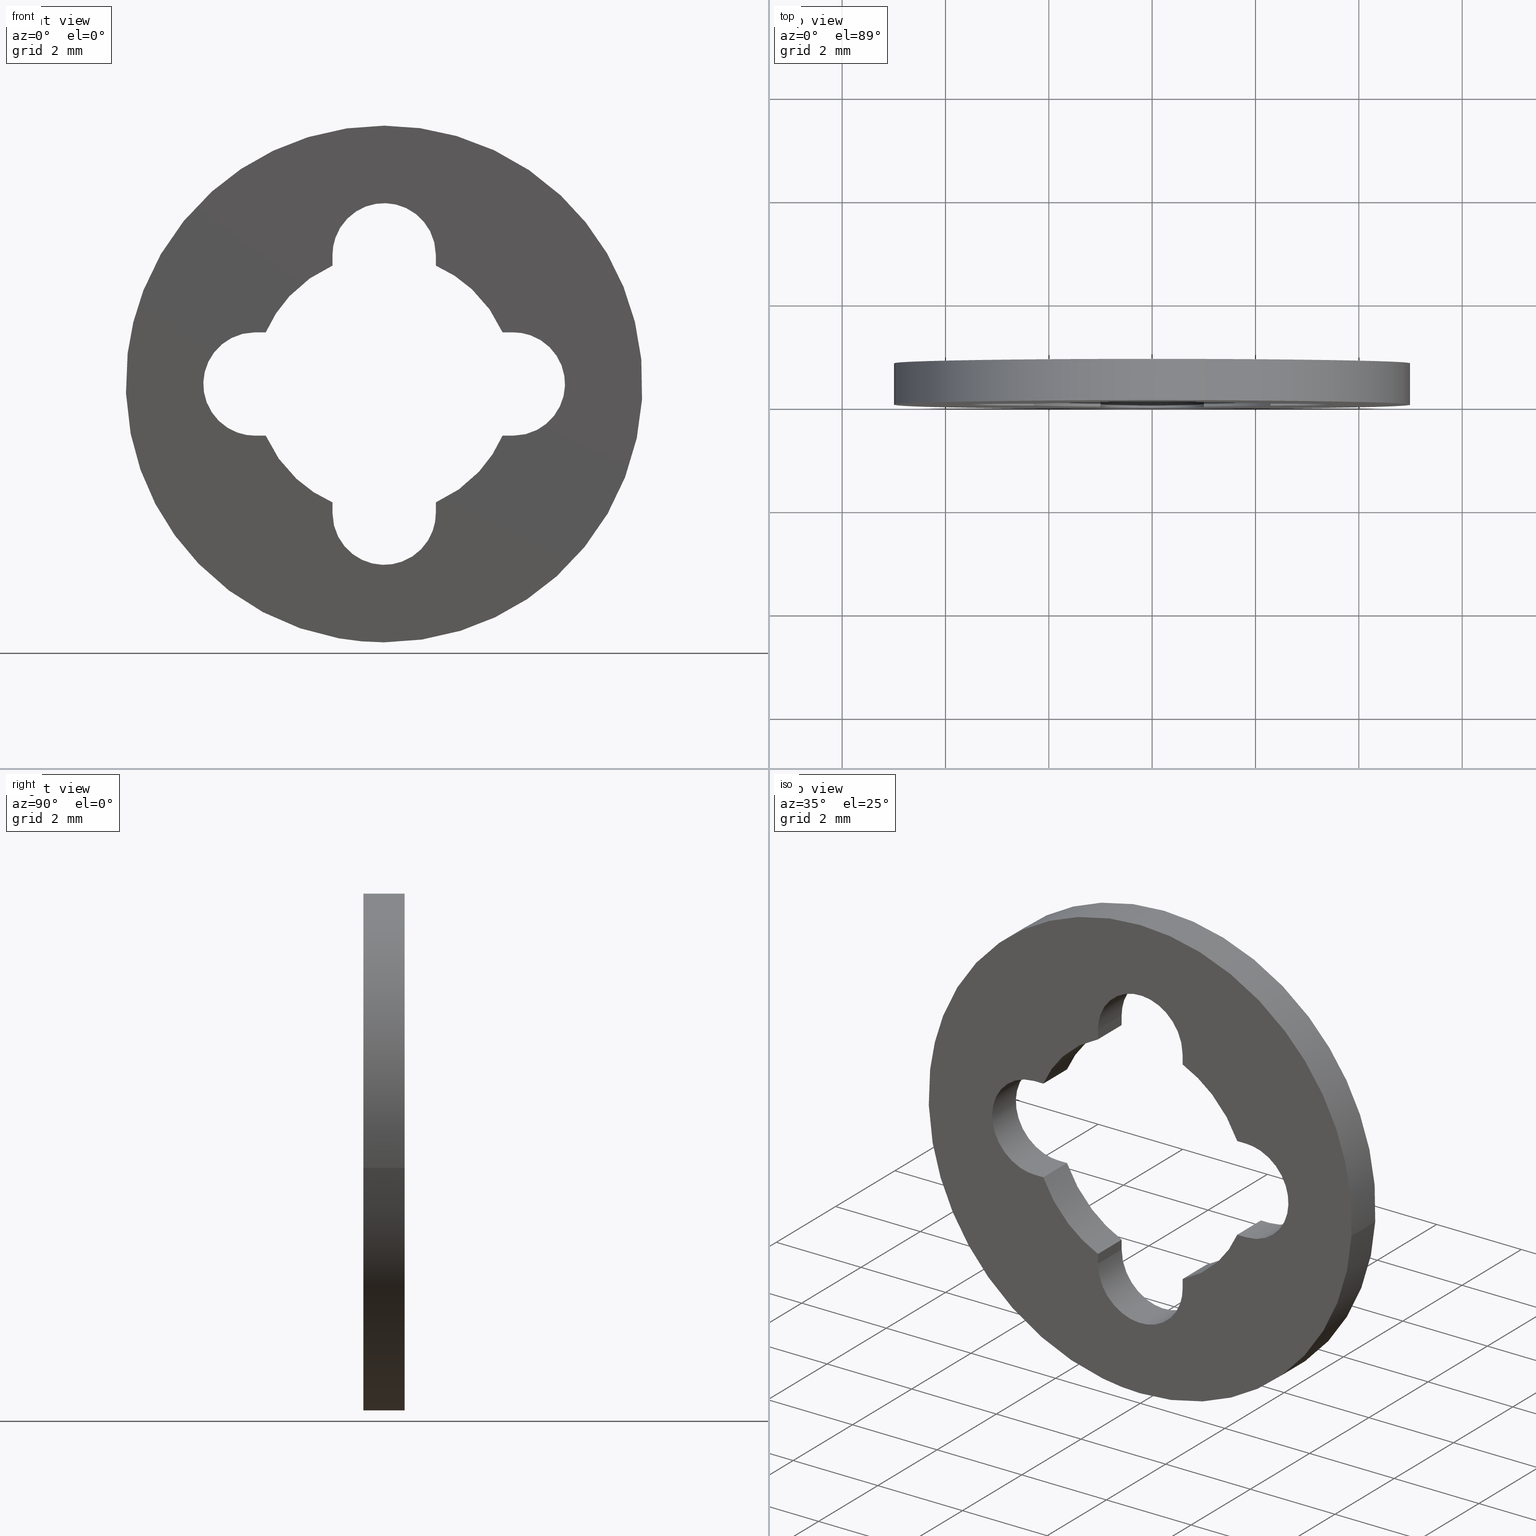
[diagram: canonical four-view strip — front | top / right | iso, engineering-drawing reading convention]
A machine part, canonical four-view strip (front | top / right | iso — engineering-drawing reading convention). The complete STEP part file that produces these views, byte-faithful:
ISO-10303-21;
HEADER;
/****************************************************************
 * Generated by software with PDE/Lib inside                    *
 * PDElib Version 4.4.1-0003, patched  Thursday August 19 11:58 *
 * International Technegroup Inc. (www.iti-oh.com)              *
 ****************************************************************/
FILE_DESCRIPTION((''),'2;1');
FILE_NAME('','2005-07-15T17:44:19',(''),(''),'','CADfix','');
FILE_SCHEMA(('AUTOMOTIVE_DESIGN'));
ENDSEC;
DATA;
#5=APPLICATION_CONTEXT('automotive design');
#6=APPLICATION_PROTOCOL_DEFINITION('Draft International Standard','automotive_design',1998,#5);
#7=PRODUCT_CONTEXT('None',#5,'mechanical');
#8=PRODUCT('washer','','None',(#7));
#9=PRODUCT_RELATED_PRODUCT_CATEGORY('part','description',(#8));
#10=PRODUCT_DEFINITION_FORMATION('None','None',#8);
#11=PRODUCT_DEFINITION_CONTEXT('part definition',#5,'design');
#12=PRODUCT_DEFINITION('None','None',#10,#11);
#18=(NAMED_UNIT(*)PLANE_ANGLE_UNIT()SI_UNIT($,.RADIAN.));
#19=DIMENSIONAL_EXPONENTS(0.0,0.0,0.0,0.0,0.0,0.0,0.0);
#20=PLANE_ANGLE_MEASURE_WITH_UNIT(PLANE_ANGLE_MEASURE(0.017453292500000),#18);
#24=(CONVERSION_BASED_UNIT('DEGREE',#20)NAMED_UNIT(#19)PLANE_ANGLE_UNIT());
#28=(NAMED_UNIT(*)SI_UNIT($,.STERADIAN.)SOLID_ANGLE_UNIT());
#32=(LENGTH_UNIT()NAMED_UNIT(*)SI_UNIT(.MILLI.,.METRE.));
#34=UNCERTAINTY_MEASURE_WITH_UNIT(LENGTH_MEASURE(0.001000000000000),#32,'DISTANCE_ACCURACY_VALUE','');
#36=(GEOMETRIC_REPRESENTATION_CONTEXT(3)GLOBAL_UNCERTAINTY_ASSIGNED_CONTEXT((#34))GLOBAL_UNIT_ASSIGNED_CONTEXT((#24,#28,#32))REPRESENTATION_CONTEXT('None','None'));
#37=AXIS2_PLACEMENT_3D('',#38,#39,#40);
#38=CARTESIAN_POINT('',(0.0,0.0,0.0));
#39=DIRECTION('',(0.0,0.0,1.0));
#40=DIRECTION('',(1.0,0.0,0.0));
#41=ADVANCED_BREP_SHAPE_REPRESENTATION('',(#37,#971),#36);
#42=PRODUCT_DEFINITION_SHAPE('','',#12);
#43=SHAPE_DEFINITION_REPRESENTATION(#42,#41);
#44=CARTESIAN_POINT('',(-4.965047631818332,0.820000000000024,0.590171173283792));
#45=CARTESIAN_POINT('',(-4.981938077243028,0.820000000000024,0.448073643189888));
#46=CARTESIAN_POINT('',(-4.990673992109334,0.820000000000024,0.305242697674285));
#47=CARTESIAN_POINT('',(-5.295916689783620,0.820000000000024,-4.685431294435048));
#48=CARTESIAN_POINT('',(-0.305242697674285,0.820000000000024,-4.990673992109334));
#49=CARTESIAN_POINT('',(4.685431294435048,0.820000000000024,-5.295916689783620));
#50=CARTESIAN_POINT('',(4.990673992109334,0.820000000000024,-0.305242697674285));
#51=CARTESIAN_POINT('',(-4.965047631818332,-0.020500000000001,0.590171173283792));
#52=CARTESIAN_POINT('',(-4.981938077243028,-0.020500000000001,0.448073643189888));
#53=CARTESIAN_POINT('',(-4.990673992109334,-0.020500000000001,0.305242697674285));
#54=CARTESIAN_POINT('',(-5.295916689783620,-0.020500000000001,-4.685431294435048));
#55=CARTESIAN_POINT('',(-0.305242697674285,-0.020500000000001,-4.990673992109334));
#56=CARTESIAN_POINT('',(4.685431294435048,-0.020500000000001,-5.295916689783620));
#57=CARTESIAN_POINT('',(4.990673992109334,-0.020500000000001,-0.305242697674285));
#65=(BOUNDED_SURFACE()B_SPLINE_SURFACE(2,1,((#44,#51),(#45,#52),(#46,#53),(#47,#54),(#48,#55),(#49,#56),(#50,#57)),.UNSPECIFIED.,.F.,.F.,.U.)B_SPLINE_SURFACE_WITH_KNOTS((3,2,2,3),(2,2),(0.0,0.331370849898476,8.615642097360375,16.899913344822270),(0.0,1.0),.UNSPECIFIED.)GEOMETRIC_REPRESENTATION_ITEM()RATIONAL_B_SPLINE_SURFACE(((0.977505800795127,0.977505800795127),(0.988284271247462,0.988284271247462),(1.0,1.0),(0.707106781186548,0.707106781186548),(1.0,1.0),(0.707106781186548,0.707106781186548),(1.0,1.0)))REPRESENTATION_ITEM('')SURFACE());
#66=CARTESIAN_POINT('',(-4.965048007634929,3.045997E-014,0.590168011561354));
#67=VERTEX_POINT('',#66);
#68=CARTESIAN_POINT('',(0.0,0.0,-5.0));
#69=VERTEX_POINT('',#68);
#70=CARTESIAN_POINT('',(-4.965048007634929,3.045997E-014,0.590168011561354));
#71=CARTESIAN_POINT('',(-5.000000000000001,0.0,0.296119000685819));
#72=CARTESIAN_POINT('',(-5.0,0.0,0.0));
#73=CARTESIAN_POINT('',(-5.000000000000001,0.0,-5.000000000000001));
#74=CARTESIAN_POINT('',(0.0,0.0,-5.0));
#82=(BOUNDED_CURVE()B_SPLINE_CURVE(2,(#70,#71,#72,#73,#74),.UNSPECIFIED.,.F.,.U.)B_SPLINE_CURVE_WITH_KNOTS((3,2,3),(0.229562581136241,0.250000000000000,0.500000000000000),.UNSPECIFIED.)CURVE()GEOMETRIC_REPRESENTATION_ITEM()RATIONAL_B_SPLINE_CURVE((0.956026965128767,0.976056074419019,1.0,0.707106781186548,1.0))REPRESENTATION_ITEM(''));
#83=EDGE_CURVE('',#67,#69,#82,.T.);
#84=ORIENTED_EDGE('',*,*,#83,.F.);
#85=CARTESIAN_POINT('',(-4.965048002999415,0.800000000000023,0.590168050559857));
#86=VERTEX_POINT('',#85);
#87=CARTESIAN_POINT('',(-4.965048002999415,0.800000000000023,0.590168050559857));
#88=CARTESIAN_POINT('',(-4.965048007634929,3.045997E-014,0.590168011561354));
#89=QUASI_UNIFORM_CURVE('',1,(#87,#88),.UNSPECIFIED.,.F.,.U.);
#90=EDGE_CURVE('',#86,#67,#89,.T.);
#91=ORIENTED_EDGE('',*,*,#90,.F.);
#92=CARTESIAN_POINT('',(0.0,0.800000000000023,-5.0));
#93=VERTEX_POINT('',#92);
#94=CARTESIAN_POINT('',(-4.965048002999415,0.800000000000023,0.590168050559856));
#95=CARTESIAN_POINT('',(-5.0,0.800000000000023,0.296119020391210));
#96=CARTESIAN_POINT('',(-5.0,0.800000000000023,0.0));
#97=CARTESIAN_POINT('',(-5.000000000000001,0.800000000000023,-5.000000000000001));
#98=CARTESIAN_POINT('',(0.0,0.800000000000023,-5.0));
#106=(BOUNDED_CURVE()B_SPLINE_CURVE(2,(#94,#95,#96,#97,#98),.UNSPECIFIED.,.F.,.U.)B_SPLINE_CURVE_WITH_KNOTS((3,2,3),(0.229562579808786,0.250000000000000,0.500000000000000),.UNSPECIFIED.)CURVE()GEOMETRIC_REPRESENTATION_ITEM()RATIONAL_B_SPLINE_CURVE((0.956026962526900,0.976056072863809,1.0,0.707106781186548,1.0))REPRESENTATION_ITEM(''));
#107=EDGE_CURVE('',#86,#93,#106,.T.);
#108=ORIENTED_EDGE('',*,*,#107,.T.);
#109=CARTESIAN_POINT('',(4.990674099992546,0.800000000000023,-0.305240933789139));
#110=VERTEX_POINT('',#109);
#111=CARTESIAN_POINT('',(0.0,0.800000000000023,-5.0));
#112=CARTESIAN_POINT('',(4.703532000033385,0.800000000000023,-5.000000000000001));
#113=CARTESIAN_POINT('',(4.990674099992546,0.800000000000023,-0.305240933789139));
#121=(BOUNDED_CURVE()B_SPLINE_CURVE(2,(#111,#112,#113),.UNSPECIFIED.,.F.,.U.)B_SPLINE_CURVE_WITH_KNOTS((3,3),(0.500000000000000,0.739333023226263),.UNSPECIFIED.)CURVE()GEOMETRIC_REPRESENTATION_ITEM()RATIONAL_B_SPLINE_CURVE((1.0,0.719603921835620,0.976072172374189))REPRESENTATION_ITEM(''));
#122=EDGE_CURVE('',#93,#110,#121,.T.);
#123=ORIENTED_EDGE('',*,*,#122,.T.);
#124=CARTESIAN_POINT('',(4.990674101339240,2.014708E-014,-0.305240911770624));
#125=VERTEX_POINT('',#124);
#126=CARTESIAN_POINT('',(4.990674099992546,0.800000000000023,-0.305240933789139));
#127=CARTESIAN_POINT('',(4.990674101339240,2.014708E-014,-0.305240911770624));
#128=QUASI_UNIFORM_CURVE('',1,(#126,#127),.UNSPECIFIED.,.F.,.U.);
#129=EDGE_CURVE('',#110,#125,#128,.T.);
#130=ORIENTED_EDGE('',*,*,#129,.T.);
#131=CARTESIAN_POINT('',(0.0,0.0,-5.0));
#132=CARTESIAN_POINT('',(4.703532020823824,0.0,-4.999999999999999));
#133=CARTESIAN_POINT('',(4.990674101339240,2.014708E-014,-0.305240911770624));
#141=(BOUNDED_CURVE()B_SPLINE_CURVE(2,(#131,#132,#133),.UNSPECIFIED.,.F.,.U.)B_SPLINE_CURVE_WITH_KNOTS((3,3),(0.500000000000000,0.739333023987528),.UNSPECIFIED.)CURVE()GEOMETRIC_REPRESENTATION_ITEM()RATIONAL_B_SPLINE_CURVE((1.0,0.719603920943743,0.976072174005725))REPRESENTATION_ITEM(''));
#142=EDGE_CURVE('',#69,#125,#141,.T.);
#143=ORIENTED_EDGE('',*,*,#142,.F.);
#144=EDGE_LOOP('',(#84,#91,#108,#123,#130,#143));
#145=FACE_OUTER_BOUND('',#144,.T.);
#146=ADVANCED_FACE('',(#145),#65,.T.);
#147=CARTESIAN_POINT('',(4.990673992109334,0.820000000000024,-0.305242697674285));
#148=CARTESIAN_POINT('',(5.295916689783620,0.820000000000024,4.685431294435048));
#149=CARTESIAN_POINT('',(0.305242697674285,0.820000000000024,4.990673992109334));
#150=CARTESIAN_POINT('',(-4.407717454197504,0.820000000000024,5.278930983662638));
#151=CARTESIAN_POINT('',(-4.965047631818332,0.820000000000024,0.590171173283792));
#152=CARTESIAN_POINT('',(4.990673992109334,-0.020500000000001,-0.305242697674285));
#153=CARTESIAN_POINT('',(5.295916689783620,-0.020500000000001,4.685431294435048));
#154=CARTESIAN_POINT('',(0.305242697674285,-0.020500000000001,4.990673992109334));
#155=CARTESIAN_POINT('',(-4.407717454197504,-0.020500000000001,5.278930983662638));
#156=CARTESIAN_POINT('',(-4.965047631818332,-0.020500000000001,0.590171173283792));
#164=(BOUNDED_SURFACE()B_SPLINE_SURFACE(2,1,((#147,#152),(#148,#153),(#149,#154),(#150,#155),(#151,#156)),.UNSPECIFIED.,.F.,.F.,.U.)B_SPLINE_SURFACE_WITH_KNOTS((3,2,3),(2,2),(0.0,8.284271247461899,16.237171645025320),(0.0,1.0),.UNSPECIFIED.)GEOMETRIC_REPRESENTATION_ITEM()RATIONAL_B_SPLINE_SURFACE(((1.0,1.0),(0.707106781186548,0.707106781186548),(1.0,1.0),(0.718822509939086,0.718822509939086),(0.977505800795127,0.977505800795127)))REPRESENTATION_ITEM('')SURFACE());
#165=CARTESIAN_POINT('',(0.0,0.0,5.0));
#166=VERTEX_POINT('',#165);
#167=CARTESIAN_POINT('',(0.0,0.0,5.0));
#168=CARTESIAN_POINT('',(-4.440875477595059,0.0,5.000000000000001));
#169=CARTESIAN_POINT('',(-4.965048007634929,3.045997E-014,0.590168011561354));
#177=(BOUNDED_CURVE()B_SPLINE_CURVE(2,(#167,#168,#169),.UNSPECIFIED.,.F.,.U.)B_SPLINE_CURVE_WITH_KNOTS((3,3),(0.0,0.229562581136241),.UNSPECIFIED.)CURVE()GEOMETRIC_REPRESENTATION_ITEM()RATIONAL_B_SPLINE_CURVE((1.0,0.731050706767529,0.956026965128767))REPRESENTATION_ITEM(''));
#178=EDGE_CURVE('',#166,#67,#177,.T.);
#179=ORIENTED_EDGE('',*,*,#178,.F.);
#180=CARTESIAN_POINT('',(4.990674101339240,2.014708E-014,-0.305240911770624));
#181=CARTESIAN_POINT('',(5.000000000000001,0.0,-0.152762921037389));
#182=CARTESIAN_POINT('',(5.0,0.0,0.0));
#183=CARTESIAN_POINT('',(5.000000000000001,0.0,5.000000000000001));
#184=CARTESIAN_POINT('',(0.0,0.0,5.0));
#192=(BOUNDED_CURVE()B_SPLINE_CURVE(2,(#180,#181,#182,#183,#184),.UNSPECIFIED.,.F.,.U.)B_SPLINE_CURVE_WITH_KNOTS((3,2,3),(0.739333023987528,0.750000000000000,1.0),.UNSPECIFIED.)CURVE()GEOMETRIC_REPRESENTATION_ITEM()RATIONAL_B_SPLINE_CURVE((0.976072174005725,0.987502860242804,1.0,0.707106781186548,1.0))REPRESENTATION_ITEM(''));
#193=EDGE_CURVE('',#125,#166,#192,.T.);
#194=ORIENTED_EDGE('',*,*,#193,.F.);
#195=ORIENTED_EDGE('',*,*,#129,.F.);
#196=CARTESIAN_POINT('',(0.0,0.800000000000023,5.0));
#197=VERTEX_POINT('',#196);
#198=CARTESIAN_POINT('',(4.990674099992546,0.800000000000023,-0.305240933789139));
#199=CARTESIAN_POINT('',(4.999999999999999,0.800000000000023,-0.152762932077514));
#200=CARTESIAN_POINT('',(5.0,0.800000000000023,0.0));
#201=CARTESIAN_POINT('',(5.000000000000001,0.800000000000023,5.000000000000001));
#202=CARTESIAN_POINT('',(0.0,0.800000000000023,5.0));
#210=(BOUNDED_CURVE()B_SPLINE_CURVE(2,(#198,#199,#200,#201,#202),.UNSPECIFIED.,.F.,.U.)B_SPLINE_CURVE_WITH_KNOTS((3,2,3),(0.739333023226263,0.750000000000000,1.0),.UNSPECIFIED.)CURVE()GEOMETRIC_REPRESENTATION_ITEM()RATIONAL_B_SPLINE_CURVE((0.976072172374189,0.987502859350927,1.0,0.707106781186548,1.0))REPRESENTATION_ITEM(''));
#211=EDGE_CURVE('',#110,#197,#210,.T.);
#212=ORIENTED_EDGE('',*,*,#211,.T.);
#213=CARTESIAN_POINT('',(0.0,0.800000000000023,5.0));
#214=CARTESIAN_POINT('',(-4.440875442468178,0.800000000000023,5.0));
#215=CARTESIAN_POINT('',(-4.965048002999415,0.800000000000023,0.590168050559856));
#223=(BOUNDED_CURVE()B_SPLINE_CURVE(2,(#213,#214,#215),.UNSPECIFIED.,.F.,.U.)B_SPLINE_CURVE_WITH_KNOTS((3,3),(0.0,0.229562579808786),.UNSPECIFIED.)CURVE()GEOMETRIC_REPRESENTATION_ITEM()RATIONAL_B_SPLINE_CURVE((1.0,0.731050708322738,0.956026962526900))REPRESENTATION_ITEM(''));
#224=EDGE_CURVE('',#197,#86,#223,.T.);
#225=ORIENTED_EDGE('',*,*,#224,.T.);
#226=ORIENTED_EDGE('',*,*,#90,.T.);
#227=EDGE_LOOP('',(#179,#194,#195,#212,#225,#226));
#228=FACE_OUTER_BOUND('',#227,.T.);
#229=ADVANCED_FACE('',(#228),#164,.T.);
#230=CARTESIAN_POINT('',(-0.999657324975557,0.820000000000024,2.473823051692126));
#231=CARTESIAN_POINT('',(-0.999657324975557,-0.020500000000001,2.473823051692126));
#232=CARTESIAN_POINT('',(-1.027242072842902,0.820000000000023,3.527242072842900));
#233=CARTESIAN_POINT('',(-1.027242072842902,-0.020500000000001,3.527242072842900));
#234=CARTESIAN_POINT('',(0.026176948307872,0.820000000000024,3.499657324975557));
#235=CARTESIAN_POINT('',(0.026176948307872,-0.020500000000001,3.499657324975557));
#236=CARTESIAN_POINT('',(1.079595969458647,0.820000000000023,3.472072577108215));
#237=CARTESIAN_POINT('',(1.079595969458647,-0.020500000000001,3.472072577108215));
#238=CARTESIAN_POINT('',(0.996917333733128,0.820000000000024,2.421540904272156));
#239=CARTESIAN_POINT('',(0.996917333733128,-0.020500000000001,2.421540904272156));
#247=(BOUNDED_SURFACE()B_SPLINE_SURFACE(1,2,((#230,#232,#234,#236,#238),(#231,#233,#235,#237,#239)),.UNSPECIFIED.,.F.,.F.,.U.)B_SPLINE_SURFACE_WITH_KNOTS((2,2),(3,2,3),(0.0,1.0),(0.0,1.0,2.0),.UNSPECIFIED.)GEOMETRIC_REPRESENTATION_ITEM()RATIONAL_B_SPLINE_SURFACE(((1.0,0.688354575693754,1.0,0.688354575693754,1.0),(1.0,0.688354575693754,1.0,0.688354575693754,1.0)))REPRESENTATION_ITEM('')SURFACE());
#248=CARTESIAN_POINT('',(1.0,0.0,2.500000000000000));
#249=VERTEX_POINT('',#248);
#250=CARTESIAN_POINT('',(-1.0,0.0,2.500000000000000));
#251=VERTEX_POINT('',#250);
#252=CARTESIAN_POINT('',(1.0,0.0,2.500000000000000));
#253=CARTESIAN_POINT('',(1.0,0.0,3.499999999999999));
#254=CARTESIAN_POINT('',(0.0,0.0,3.500000000000000));
#255=CARTESIAN_POINT('',(-1.0,0.0,3.499999999999999));
#256=CARTESIAN_POINT('',(-1.0,0.0,2.500000000000000));
#264=(BOUNDED_CURVE()B_SPLINE_CURVE(2,(#252,#253,#254,#255,#256),.UNSPECIFIED.,.F.,.U.)B_SPLINE_CURVE_WITH_KNOTS((3,2,3),(0.0,0.500000000000000,1.0),.UNSPECIFIED.)CURVE()GEOMETRIC_REPRESENTATION_ITEM()RATIONAL_B_SPLINE_CURVE((1.0,0.707106781186548,1.0,0.707106781186548,1.0))REPRESENTATION_ITEM(''));
#265=EDGE_CURVE('',#249,#251,#264,.T.);
#266=ORIENTED_EDGE('',*,*,#265,.T.);
#267=CARTESIAN_POINT('',(-1.0,0.800000000000023,2.500000000000000));
#268=VERTEX_POINT('',#267);
#269=CARTESIAN_POINT('',(-1.0,0.800000000000023,2.500000000000000));
#270=CARTESIAN_POINT('',(-1.0,0.0,2.500000000000000));
#271=QUASI_UNIFORM_CURVE('',1,(#269,#270),.UNSPECIFIED.,.F.,.U.);
#272=EDGE_CURVE('',#268,#251,#271,.T.);
#273=ORIENTED_EDGE('',*,*,#272,.F.);
#274=CARTESIAN_POINT('',(1.0,0.800000000000023,2.500000000000000));
#275=VERTEX_POINT('',#274);
#276=CARTESIAN_POINT('',(1.0,0.800000000000023,2.500000000000000));
#277=CARTESIAN_POINT('',(1.0,0.800000000000023,3.499999999999999));
#278=CARTESIAN_POINT('',(0.0,0.800000000000023,3.500000000000000));
#279=CARTESIAN_POINT('',(-1.0,0.800000000000023,3.499999999999999));
#280=CARTESIAN_POINT('',(-1.0,0.800000000000023,2.500000000000000));
#288=(BOUNDED_CURVE()B_SPLINE_CURVE(2,(#276,#277,#278,#279,#280),.UNSPECIFIED.,.F.,.U.)B_SPLINE_CURVE_WITH_KNOTS((3,2,3),(0.0,0.500000000000000,1.0),.UNSPECIFIED.)CURVE()GEOMETRIC_REPRESENTATION_ITEM()RATIONAL_B_SPLINE_CURVE((1.0,0.707106781186548,1.0,0.707106781186548,1.0))REPRESENTATION_ITEM(''));
#289=EDGE_CURVE('',#275,#268,#288,.T.);
#290=ORIENTED_EDGE('',*,*,#289,.F.);
#291=CARTESIAN_POINT('',(1.0,0.800000000000023,2.500000000000000));
#292=CARTESIAN_POINT('',(1.0,0.0,2.500000000000000));
#293=QUASI_UNIFORM_CURVE('',1,(#291,#292),.UNSPECIFIED.,.F.,.U.);
#294=EDGE_CURVE('',#275,#249,#293,.T.);
#295=ORIENTED_EDGE('',*,*,#294,.T.);
#296=EDGE_LOOP('',(#266,#273,#290,#295));
#297=FACE_OUTER_BOUND('',#296,.T.);
#298=ADVANCED_FACE('',(#297),#247,.F.);
#299=CARTESIAN_POINT('',(-1.0,-0.039959998449446,2.510425168631288));
#300=CARTESIAN_POINT('',(-1.0,-0.039959998449446,2.280862732961562));
#301=CARTESIAN_POINT('',(-1.0,0.839960019907141,2.510425168631288));
#302=CARTESIAN_POINT('',(-1.0,0.839960019907141,2.280862732961562));
#303=B_SPLINE_SURFACE_WITH_KNOTS('',1,1,((#299,#301),(#300,#302)),.UNSPECIFIED.,.F.,.F.,.U.,(2,2),(2,2),(0.0,0.229562435669726),(0.041708334948495,0.958291687403247),.UNSPECIFIED.);
#304=CARTESIAN_POINT('',(-1.0,0.0,2.291287847477920));
#305=VERTEX_POINT('',#304);
#306=CARTESIAN_POINT('',(-1.0,0.0,2.291287847477920));
#307=CARTESIAN_POINT('',(-1.0,0.0,2.500000000000000));
#308=QUASI_UNIFORM_CURVE('',1,(#306,#307),.UNSPECIFIED.,.F.,.U.);
#309=EDGE_CURVE('',#305,#251,#308,.T.);
#310=ORIENTED_EDGE('',*,*,#309,.F.);
#311=CARTESIAN_POINT('',(-1.0,0.800000000000023,2.291287847477920));
#312=VERTEX_POINT('',#311);
#313=CARTESIAN_POINT('',(-1.0,0.800000000000023,2.291287847477920));
#314=CARTESIAN_POINT('',(-1.0,0.0,2.291287847477920));
#315=QUASI_UNIFORM_CURVE('',1,(#313,#314),.UNSPECIFIED.,.F.,.U.);
#316=EDGE_CURVE('',#312,#305,#315,.T.);
#317=ORIENTED_EDGE('',*,*,#316,.F.);
#318=CARTESIAN_POINT('',(-1.0,0.800000000000023,2.291287847477920));
#319=CARTESIAN_POINT('',(-1.0,0.800000000000023,2.500000000000000));
#320=QUASI_UNIFORM_CURVE('',1,(#318,#319),.UNSPECIFIED.,.F.,.U.);
#321=EDGE_CURVE('',#312,#268,#320,.T.);
#322=ORIENTED_EDGE('',*,*,#321,.T.);
#323=ORIENTED_EDGE('',*,*,#272,.T.);
#324=EDGE_LOOP('',(#310,#317,#322,#323));
#325=FACE_OUTER_BOUND('',#324,.T.);
#326=ADVANCED_FACE('',(#325),#303,.T.);
#327=CARTESIAN_POINT('',(-2.319235328629118,0.820000000000024,0.933352822055294));
#328=CARTESIAN_POINT('',(-2.319235328629118,-0.020500000000001,0.933352822055294));
#329=CARTESIAN_POINT('',(-1.917334160502892,0.820000000000024,1.932014170379192));
#330=CARTESIAN_POINT('',(-1.917334160502892,-0.020500000000001,1.932014170379192));
#331=CARTESIAN_POINT('',(-0.915636496229006,0.820000000000024,2.326286699178213));
#332=CARTESIAN_POINT('',(-0.915636496229006,-0.020500000000001,2.326286699178213));
#340=(BOUNDED_SURFACE()B_SPLINE_SURFACE(1,2,((#327,#329,#331),(#328,#330,#332)),.UNSPECIFIED.,.F.,.F.,.U.)B_SPLINE_SURFACE_WITH_KNOTS((2,2),(3,3),(0.0,1.0),(0.0,2.061489313487968),.UNSPECIFIED.)GEOMETRIC_REPRESENTATION_ITEM()RATIONAL_B_SPLINE_SURFACE(((1.0,0.914501185304179,0.991377992422548),(1.0,0.914501185304179,0.991377992422548)))REPRESENTATION_ITEM('')SURFACE());
#341=CARTESIAN_POINT('',(-2.291287847477920,0.0,1.0));
#342=VERTEX_POINT('',#341);
#343=CARTESIAN_POINT('',(-1.000000000000000,0.0,2.291287847477920));
#344=CARTESIAN_POINT('',(-1.898952716879295,0.0,1.898952716879295));
#345=CARTESIAN_POINT('',(-2.291287847477920,0.0,1.000000000000000));
#353=(BOUNDED_CURVE()B_SPLINE_CURVE(2,(#343,#344,#345),.UNSPECIFIED.,.F.,.U.)CURVE()GEOMETRIC_REPRESENTATION_ITEM()QUASI_UNIFORM_CURVE()RATIONAL_B_SPLINE_CURVE((1.0,0.930916782315405,1.0))REPRESENTATION_ITEM(''));
#354=EDGE_CURVE('',#305,#342,#353,.T.);
#355=ORIENTED_EDGE('',*,*,#354,.T.);
#356=CARTESIAN_POINT('',(-2.291287847477920,0.800000000000023,1.0));
#357=VERTEX_POINT('',#356);
#358=CARTESIAN_POINT('',(-2.291287847477920,0.800000000000023,1.0));
#359=CARTESIAN_POINT('',(-2.291287847477920,0.0,1.0));
#360=QUASI_UNIFORM_CURVE('',1,(#358,#359),.UNSPECIFIED.,.F.,.U.);
#361=EDGE_CURVE('',#357,#342,#360,.T.);
#362=ORIENTED_EDGE('',*,*,#361,.F.);
#363=CARTESIAN_POINT('',(-1.000000000000000,0.800000000000023,2.291287847477920));
#364=CARTESIAN_POINT('',(-1.898952716879295,0.800000000000023,1.898952716879295));
#365=CARTESIAN_POINT('',(-2.291287847477920,0.800000000000023,1.000000000000000));
#373=(BOUNDED_CURVE()B_SPLINE_CURVE(2,(#363,#364,#365),.UNSPECIFIED.,.F.,.U.)CURVE()GEOMETRIC_REPRESENTATION_ITEM()QUASI_UNIFORM_CURVE()RATIONAL_B_SPLINE_CURVE((1.0,0.930916782315405,1.0))REPRESENTATION_ITEM(''));
#374=EDGE_CURVE('',#312,#357,#373,.T.);
#375=ORIENTED_EDGE('',*,*,#374,.F.);
#376=ORIENTED_EDGE('',*,*,#316,.T.);
#377=EDGE_LOOP('',(#355,#362,#375,#376));
#378=FACE_OUTER_BOUND('',#377,.T.);
#379=ADVANCED_FACE('',(#378),#340,.F.);
#380=CARTESIAN_POINT('',(-2.280862728763457,-0.039959998449446,1.0));
#381=CARTESIAN_POINT('',(-2.510425174695425,-0.039959998449446,1.0));
#382=CARTESIAN_POINT('',(-2.280862728763457,0.839960019907141,1.0));
#383=CARTESIAN_POINT('',(-2.510425174695425,0.839960019907141,1.0));
#384=B_SPLINE_SURFACE_WITH_KNOTS('',1,1,((#380,#382),(#381,#383)),.UNSPECIFIED.,.F.,.F.,.U.,(2,2),(2,2),(0.0,0.229562445931969),(0.041708334948495,0.958291687403247),.UNSPECIFIED.);
#385=CARTESIAN_POINT('',(-2.500000000000000,0.0,1.0));
#386=VERTEX_POINT('',#385);
#387=CARTESIAN_POINT('',(-2.500000000000000,0.0,1.0));
#388=CARTESIAN_POINT('',(-2.291287847477920,0.0,1.0));
#389=QUASI_UNIFORM_CURVE('',1,(#387,#388),.UNSPECIFIED.,.F.,.U.);
#390=EDGE_CURVE('',#386,#342,#389,.T.);
#391=ORIENTED_EDGE('',*,*,#390,.F.);
#392=CARTESIAN_POINT('',(-2.500000000000000,0.800000000000023,1.0));
#393=VERTEX_POINT('',#392);
#394=CARTESIAN_POINT('',(-2.500000000000000,0.800000000000023,1.0));
#395=CARTESIAN_POINT('',(-2.500000000000000,0.0,1.0));
#396=QUASI_UNIFORM_CURVE('',1,(#394,#395),.UNSPECIFIED.,.F.,.U.);
#397=EDGE_CURVE('',#393,#386,#396,.T.);
#398=ORIENTED_EDGE('',*,*,#397,.F.);
#399=CARTESIAN_POINT('',(-2.500000000000000,0.800000000000023,1.0));
#400=CARTESIAN_POINT('',(-2.291287847477920,0.800000000000023,1.0));
#401=QUASI_UNIFORM_CURVE('',1,(#399,#400),.UNSPECIFIED.,.F.,.U.);
#402=EDGE_CURVE('',#393,#357,#401,.T.);
#403=ORIENTED_EDGE('',*,*,#402,.T.);
#404=ORIENTED_EDGE('',*,*,#361,.T.);
#405=EDGE_LOOP('',(#391,#398,#403,#404));
#406=FACE_OUTER_BOUND('',#405,.T.);
#407=ADVANCED_FACE('',(#406),#384,.T.);
#408=CARTESIAN_POINT('',(-2.473823051692126,0.820000000000024,-0.999657324975557));
#409=CARTESIAN_POINT('',(-2.473823051692126,-0.020500000000001,-0.999657324975557));
#410=CARTESIAN_POINT('',(-3.527242072842900,0.820000000000023,-1.027242072842902));
#411=CARTESIAN_POINT('',(-3.527242072842900,-0.020500000000001,-1.027242072842902));
#412=CARTESIAN_POINT('',(-3.499657324975557,0.820000000000024,0.026176948307872));
#413=CARTESIAN_POINT('',(-3.499657324975557,-0.020500000000001,0.026176948307872));
#414=CARTESIAN_POINT('',(-3.472072577108215,0.820000000000023,1.079595969458647));
#415=CARTESIAN_POINT('',(-3.472072577108215,-0.020500000000001,1.079595969458647));
#416=CARTESIAN_POINT('',(-2.421540904272156,0.820000000000024,0.996917333733128));
#417=CARTESIAN_POINT('',(-2.421540904272156,-0.020500000000001,0.996917333733128));
#425=(BOUNDED_SURFACE()B_SPLINE_SURFACE(1,2,((#408,#410,#412,#414,#416),(#409,#411,#413,#415,#417)),.UNSPECIFIED.,.F.,.F.,.U.)B_SPLINE_SURFACE_WITH_KNOTS((2,2),(3,2,3),(0.0,1.0),(0.0,1.0,2.0),.UNSPECIFIED.)GEOMETRIC_REPRESENTATION_ITEM()RATIONAL_B_SPLINE_SURFACE(((1.0,0.688354575693754,1.0,0.688354575693754,1.0),(1.0,0.688354575693754,1.0,0.688354575693754,1.0)))REPRESENTATION_ITEM('')SURFACE());
#426=CARTESIAN_POINT('',(-2.500000000000000,0.0,-1.0));
#427=VERTEX_POINT('',#426);
#428=CARTESIAN_POINT('',(-2.500000000000000,0.0,1.0));
#429=CARTESIAN_POINT('',(-3.499999999999999,0.0,1.0));
#430=CARTESIAN_POINT('',(-3.500000000000000,0.0,0.0));
#431=CARTESIAN_POINT('',(-3.499999999999999,0.0,-1.0));
#432=CARTESIAN_POINT('',(-2.500000000000000,0.0,-1.0));
#440=(BOUNDED_CURVE()B_SPLINE_CURVE(2,(#428,#429,#430,#431,#432),.UNSPECIFIED.,.F.,.U.)B_SPLINE_CURVE_WITH_KNOTS((3,2,3),(0.0,0.500000000000000,1.0),.UNSPECIFIED.)CURVE()GEOMETRIC_REPRESENTATION_ITEM()RATIONAL_B_SPLINE_CURVE((1.0,0.707106781186548,1.0,0.707106781186548,1.0))REPRESENTATION_ITEM(''));
#441=EDGE_CURVE('',#386,#427,#440,.T.);
#442=ORIENTED_EDGE('',*,*,#441,.T.);
#443=CARTESIAN_POINT('',(-2.500000000000000,0.800000000000023,-1.0));
#444=VERTEX_POINT('',#443);
#445=CARTESIAN_POINT('',(-2.500000000000000,0.800000000000023,-1.0));
#446=CARTESIAN_POINT('',(-2.500000000000000,0.0,-1.0));
#447=QUASI_UNIFORM_CURVE('',1,(#445,#446),.UNSPECIFIED.,.F.,.U.);
#448=EDGE_CURVE('',#444,#427,#447,.T.);
#449=ORIENTED_EDGE('',*,*,#448,.F.);
#450=CARTESIAN_POINT('',(-2.500000000000000,0.800000000000023,1.0));
#451=CARTESIAN_POINT('',(-3.499999999999999,0.800000000000023,1.0));
#452=CARTESIAN_POINT('',(-3.500000000000000,0.800000000000023,0.0));
#453=CARTESIAN_POINT('',(-3.499999999999999,0.800000000000023,-1.0));
#454=CARTESIAN_POINT('',(-2.500000000000000,0.800000000000023,-1.0));
#462=(BOUNDED_CURVE()B_SPLINE_CURVE(2,(#450,#451,#452,#453,#454),.UNSPECIFIED.,.F.,.U.)B_SPLINE_CURVE_WITH_KNOTS((3,2,3),(0.0,0.500000000000000,1.0),.UNSPECIFIED.)CURVE()GEOMETRIC_REPRESENTATION_ITEM()RATIONAL_B_SPLINE_CURVE((1.0,0.707106781186548,1.0,0.707106781186548,1.0))REPRESENTATION_ITEM(''));
#463=EDGE_CURVE('',#393,#444,#462,.T.);
#464=ORIENTED_EDGE('',*,*,#463,.F.);
#465=ORIENTED_EDGE('',*,*,#397,.T.);
#466=EDGE_LOOP('',(#442,#449,#464,#465));
#467=FACE_OUTER_BOUND('',#466,.T.);
#468=ADVANCED_FACE('',(#467),#425,.F.);
#469=CARTESIAN_POINT('',(-2.510425168631288,-0.039959998449446,-1.0));
#470=CARTESIAN_POINT('',(-2.280862732961562,-0.039959998449446,-1.0));
#471=CARTESIAN_POINT('',(-2.510425168631288,0.839960019907141,-1.0));
#472=CARTESIAN_POINT('',(-2.280862732961562,0.839960019907141,-1.0));
#473=B_SPLINE_SURFACE_WITH_KNOTS('',1,1,((#469,#471),(#470,#472)),.UNSPECIFIED.,.F.,.F.,.U.,(2,2),(2,2),(0.0,0.229562435669726),(0.041708334948495,0.958291687403247),.UNSPECIFIED.);
#474=CARTESIAN_POINT('',(-2.291287847477920,0.0,-1.0));
#475=VERTEX_POINT('',#474);
#476=CARTESIAN_POINT('',(-2.291287847477920,0.0,-1.0));
#477=CARTESIAN_POINT('',(-2.500000000000000,0.0,-1.0));
#478=QUASI_UNIFORM_CURVE('',1,(#476,#477),.UNSPECIFIED.,.F.,.U.);
#479=EDGE_CURVE('',#475,#427,#478,.T.);
#480=ORIENTED_EDGE('',*,*,#479,.F.);
#481=CARTESIAN_POINT('',(-2.291287847477920,0.800000000000023,-1.0));
#482=VERTEX_POINT('',#481);
#483=CARTESIAN_POINT('',(-2.291287847477920,0.800000000000023,-1.0));
#484=CARTESIAN_POINT('',(-2.291287847477920,0.0,-1.0));
#485=QUASI_UNIFORM_CURVE('',1,(#483,#484),.UNSPECIFIED.,.F.,.U.);
#486=EDGE_CURVE('',#482,#475,#485,.T.);
#487=ORIENTED_EDGE('',*,*,#486,.F.);
#488=CARTESIAN_POINT('',(-2.291287847477920,0.800000000000023,-1.0));
#489=CARTESIAN_POINT('',(-2.500000000000000,0.800000000000023,-1.0));
#490=QUASI_UNIFORM_CURVE('',1,(#488,#489),.UNSPECIFIED.,.F.,.U.);
#491=EDGE_CURVE('',#482,#444,#490,.T.);
#492=ORIENTED_EDGE('',*,*,#491,.T.);
#493=ORIENTED_EDGE('',*,*,#448,.T.);
#494=EDGE_LOOP('',(#480,#487,#492,#493));
#495=FACE_OUTER_BOUND('',#494,.T.);
#496=ADVANCED_FACE('',(#495),#473,.T.);
#497=CARTESIAN_POINT('',(-0.933352822055294,0.820000000000024,-2.319235328629118));
#498=CARTESIAN_POINT('',(-0.933352822055294,-0.020500000000001,-2.319235328629118));
#499=CARTESIAN_POINT('',(-1.932014170379192,0.820000000000024,-1.917334160502892));
#500=CARTESIAN_POINT('',(-1.932014170379192,-0.020500000000001,-1.917334160502892));
#501=CARTESIAN_POINT('',(-2.326286699178213,0.820000000000024,-0.915636496229006));
#502=CARTESIAN_POINT('',(-2.326286699178213,-0.020500000000001,-0.915636496229006));
#510=(BOUNDED_SURFACE()B_SPLINE_SURFACE(1,2,((#497,#499,#501),(#498,#500,#502)),.UNSPECIFIED.,.F.,.F.,.U.)B_SPLINE_SURFACE_WITH_KNOTS((2,2),(3,3),(0.0,1.0),(0.0,2.061489313487968),.UNSPECIFIED.)GEOMETRIC_REPRESENTATION_ITEM()RATIONAL_B_SPLINE_SURFACE(((1.0,0.914501185304179,0.991377992422548),(1.0,0.914501185304179,0.991377992422548)))REPRESENTATION_ITEM('')SURFACE());
#511=CARTESIAN_POINT('',(-1.0,0.0,-2.291287847477920));
#512=VERTEX_POINT('',#511);
#513=CARTESIAN_POINT('',(-2.291287847477920,0.0,-1.000000000000000));
#514=CARTESIAN_POINT('',(-1.898952716879295,0.0,-1.898952716879295));
#515=CARTESIAN_POINT('',(-1.0,0.0,-2.291287847477920));
#523=(BOUNDED_CURVE()B_SPLINE_CURVE(2,(#513,#514,#515),.UNSPECIFIED.,.F.,.U.)CURVE()GEOMETRIC_REPRESENTATION_ITEM()QUASI_UNIFORM_CURVE()RATIONAL_B_SPLINE_CURVE((1.0,0.930916782315405,1.0))REPRESENTATION_ITEM(''));
#524=EDGE_CURVE('',#475,#512,#523,.T.);
#525=ORIENTED_EDGE('',*,*,#524,.T.);
#526=CARTESIAN_POINT('',(-1.0,0.800000000000023,-2.291287847477920));
#527=VERTEX_POINT('',#526);
#528=CARTESIAN_POINT('',(-1.0,0.800000000000023,-2.291287847477920));
#529=CARTESIAN_POINT('',(-1.0,0.0,-2.291287847477920));
#530=QUASI_UNIFORM_CURVE('',1,(#528,#529),.UNSPECIFIED.,.F.,.U.);
#531=EDGE_CURVE('',#527,#512,#530,.T.);
#532=ORIENTED_EDGE('',*,*,#531,.F.);
#533=CARTESIAN_POINT('',(-2.291287847477920,0.800000000000023,-1.000000000000000));
#534=CARTESIAN_POINT('',(-1.898952716879295,0.800000000000023,-1.898952716879295));
#535=CARTESIAN_POINT('',(-1.0,0.800000000000023,-2.291287847477920));
#543=(BOUNDED_CURVE()B_SPLINE_CURVE(2,(#533,#534,#535),.UNSPECIFIED.,.F.,.U.)CURVE()GEOMETRIC_REPRESENTATION_ITEM()QUASI_UNIFORM_CURVE()RATIONAL_B_SPLINE_CURVE((1.0,0.930916782315405,1.0))REPRESENTATION_ITEM(''));
#544=EDGE_CURVE('',#482,#527,#543,.T.);
#545=ORIENTED_EDGE('',*,*,#544,.F.);
#546=ORIENTED_EDGE('',*,*,#486,.T.);
#547=EDGE_LOOP('',(#525,#532,#545,#546));
#548=FACE_OUTER_BOUND('',#547,.T.);
#549=ADVANCED_FACE('',(#548),#510,.F.);
#550=CARTESIAN_POINT('',(-1.0,-0.039959998449446,-2.280862728763457));
#551=CARTESIAN_POINT('',(-1.0,-0.039959998449446,-2.510425174695425));
#552=CARTESIAN_POINT('',(-1.0,0.839960019907141,-2.280862728763457));
#553=CARTESIAN_POINT('',(-1.0,0.839960019907141,-2.510425174695425));
#554=B_SPLINE_SURFACE_WITH_KNOTS('',1,1,((#550,#552),(#551,#553)),.UNSPECIFIED.,.F.,.F.,.U.,(2,2),(2,2),(0.0,0.229562445931969),(0.041708334948495,0.958291687403247),.UNSPECIFIED.);
#555=CARTESIAN_POINT('',(-1.0,0.0,-2.500000000000000));
#556=VERTEX_POINT('',#555);
#557=CARTESIAN_POINT('',(-1.0,0.0,-2.500000000000000));
#558=CARTESIAN_POINT('',(-1.0,0.0,-2.291287847477920));
#559=QUASI_UNIFORM_CURVE('',1,(#557,#558),.UNSPECIFIED.,.F.,.U.);
#560=EDGE_CURVE('',#556,#512,#559,.T.);
#561=ORIENTED_EDGE('',*,*,#560,.F.);
#562=CARTESIAN_POINT('',(-1.0,0.800000000000023,-2.500000000000000));
#563=VERTEX_POINT('',#562);
#564=CARTESIAN_POINT('',(-1.0,0.800000000000023,-2.500000000000000));
#565=CARTESIAN_POINT('',(-1.0,0.0,-2.500000000000000));
#566=QUASI_UNIFORM_CURVE('',1,(#564,#565),.UNSPECIFIED.,.F.,.U.);
#567=EDGE_CURVE('',#563,#556,#566,.T.);
#568=ORIENTED_EDGE('',*,*,#567,.F.);
#569=CARTESIAN_POINT('',(-1.0,0.800000000000023,-2.500000000000000));
#570=CARTESIAN_POINT('',(-1.0,0.800000000000023,-2.291287847477920));
#571=QUASI_UNIFORM_CURVE('',1,(#569,#570),.UNSPECIFIED.,.F.,.U.);
#572=EDGE_CURVE('',#563,#527,#571,.T.);
#573=ORIENTED_EDGE('',*,*,#572,.T.);
#574=ORIENTED_EDGE('',*,*,#531,.T.);
#575=EDGE_LOOP('',(#561,#568,#573,#574));
#576=FACE_OUTER_BOUND('',#575,.T.);
#577=ADVANCED_FACE('',(#576),#554,.T.);
#578=CARTESIAN_POINT('',(0.999657324975557,0.820000000000024,-2.473823051692126));
#579=CARTESIAN_POINT('',(0.999657324975557,-0.020500000000001,-2.473823051692126));
#580=CARTESIAN_POINT('',(1.027242072842902,0.820000000000023,-3.527242072842900));
#581=CARTESIAN_POINT('',(1.027242072842902,-0.020500000000001,-3.527242072842900));
#582=CARTESIAN_POINT('',(-0.026176948307872,0.820000000000024,-3.499657324975557));
#583=CARTESIAN_POINT('',(-0.026176948307872,-0.020500000000001,-3.499657324975557));
#584=CARTESIAN_POINT('',(-1.079595969458647,0.820000000000023,-3.472072577108215));
#585=CARTESIAN_POINT('',(-1.079595969458647,-0.020500000000001,-3.472072577108215));
#586=CARTESIAN_POINT('',(-0.996917333733128,0.820000000000024,-2.421540904272156));
#587=CARTESIAN_POINT('',(-0.996917333733128,-0.020500000000001,-2.421540904272156));
#595=(BOUNDED_SURFACE()B_SPLINE_SURFACE(1,2,((#578,#580,#582,#584,#586),(#579,#581,#583,#585,#587)),.UNSPECIFIED.,.F.,.F.,.U.)B_SPLINE_SURFACE_WITH_KNOTS((2,2),(3,2,3),(0.0,1.0),(0.0,1.0,2.0),.UNSPECIFIED.)GEOMETRIC_REPRESENTATION_ITEM()RATIONAL_B_SPLINE_SURFACE(((1.0,0.688354575693754,1.0,0.688354575693754,1.0),(1.0,0.688354575693754,1.0,0.688354575693754,1.0)))REPRESENTATION_ITEM('')SURFACE());
#596=CARTESIAN_POINT('',(1.0,0.0,-2.500000000000000));
#597=VERTEX_POINT('',#596);
#598=CARTESIAN_POINT('',(-1.0,0.0,-2.500000000000000));
#599=CARTESIAN_POINT('',(-1.0,0.0,-3.499999999999999));
#600=CARTESIAN_POINT('',(0.0,0.0,-3.500000000000000));
#601=CARTESIAN_POINT('',(1.0,0.0,-3.499999999999999));
#602=CARTESIAN_POINT('',(1.0,0.0,-2.500000000000000));
#610=(BOUNDED_CURVE()B_SPLINE_CURVE(2,(#598,#599,#600,#601,#602),.UNSPECIFIED.,.F.,.U.)B_SPLINE_CURVE_WITH_KNOTS((3,2,3),(0.0,0.500000000000000,1.0),.UNSPECIFIED.)CURVE()GEOMETRIC_REPRESENTATION_ITEM()RATIONAL_B_SPLINE_CURVE((1.0,0.707106781186548,1.0,0.707106781186548,1.0))REPRESENTATION_ITEM(''));
#611=EDGE_CURVE('',#556,#597,#610,.T.);
#612=ORIENTED_EDGE('',*,*,#611,.T.);
#613=CARTESIAN_POINT('',(1.0,0.800000000000023,-2.500000000000000));
#614=VERTEX_POINT('',#613);
#615=CARTESIAN_POINT('',(1.0,0.800000000000023,-2.500000000000000));
#616=CARTESIAN_POINT('',(1.0,0.0,-2.500000000000000));
#617=QUASI_UNIFORM_CURVE('',1,(#615,#616),.UNSPECIFIED.,.F.,.U.);
#618=EDGE_CURVE('',#614,#597,#617,.T.);
#619=ORIENTED_EDGE('',*,*,#618,.F.);
#620=CARTESIAN_POINT('',(-1.0,0.800000000000023,-2.500000000000000));
#621=CARTESIAN_POINT('',(-1.0,0.800000000000023,-3.499999999999999));
#622=CARTESIAN_POINT('',(0.0,0.800000000000023,-3.500000000000000));
#623=CARTESIAN_POINT('',(1.0,0.800000000000023,-3.499999999999999));
#624=CARTESIAN_POINT('',(1.0,0.800000000000023,-2.500000000000000));
#632=(BOUNDED_CURVE()B_SPLINE_CURVE(2,(#620,#621,#622,#623,#624),.UNSPECIFIED.,.F.,.U.)B_SPLINE_CURVE_WITH_KNOTS((3,2,3),(0.0,0.500000000000000,1.0),.UNSPECIFIED.)CURVE()GEOMETRIC_REPRESENTATION_ITEM()RATIONAL_B_SPLINE_CURVE((1.0,0.707106781186548,1.0,0.707106781186548,1.0))REPRESENTATION_ITEM(''));
#633=EDGE_CURVE('',#563,#614,#632,.T.);
#634=ORIENTED_EDGE('',*,*,#633,.F.);
#635=ORIENTED_EDGE('',*,*,#567,.T.);
#636=EDGE_LOOP('',(#612,#619,#634,#635));
#637=FACE_OUTER_BOUND('',#636,.T.);
#638=ADVANCED_FACE('',(#637),#595,.F.);
#639=CARTESIAN_POINT('',(1.0,-0.039959998449446,-2.510425168631288));
#640=CARTESIAN_POINT('',(1.0,-0.039959998449446,-2.280862732961562));
#641=CARTESIAN_POINT('',(1.0,0.839960019907141,-2.510425168631288));
#642=CARTESIAN_POINT('',(1.0,0.839960019907141,-2.280862732961562));
#643=B_SPLINE_SURFACE_WITH_KNOTS('',1,1,((#639,#641),(#640,#642)),.UNSPECIFIED.,.F.,.F.,.U.,(2,2),(2,2),(0.0,0.229562435669726),(0.041708334948495,0.958291687403247),.UNSPECIFIED.);
#644=CARTESIAN_POINT('',(1.0,0.0,-2.291287847477920));
#645=VERTEX_POINT('',#644);
#646=CARTESIAN_POINT('',(1.0,0.0,-2.291287847477920));
#647=CARTESIAN_POINT('',(1.0,0.0,-2.500000000000000));
#648=QUASI_UNIFORM_CURVE('',1,(#646,#647),.UNSPECIFIED.,.F.,.U.);
#649=EDGE_CURVE('',#645,#597,#648,.T.);
#650=ORIENTED_EDGE('',*,*,#649,.F.);
#651=CARTESIAN_POINT('',(1.0,0.800000000000023,-2.291287847477920));
#652=VERTEX_POINT('',#651);
#653=CARTESIAN_POINT('',(1.0,0.800000000000023,-2.291287847477920));
#654=CARTESIAN_POINT('',(1.0,0.0,-2.291287847477920));
#655=QUASI_UNIFORM_CURVE('',1,(#653,#654),.UNSPECIFIED.,.F.,.U.);
#656=EDGE_CURVE('',#652,#645,#655,.T.);
#657=ORIENTED_EDGE('',*,*,#656,.F.);
#658=CARTESIAN_POINT('',(1.0,0.800000000000023,-2.291287847477920));
#659=CARTESIAN_POINT('',(1.0,0.800000000000023,-2.500000000000000));
#660=QUASI_UNIFORM_CURVE('',1,(#658,#659),.UNSPECIFIED.,.F.,.U.);
#661=EDGE_CURVE('',#652,#614,#660,.T.);
#662=ORIENTED_EDGE('',*,*,#661,.T.);
#663=ORIENTED_EDGE('',*,*,#618,.T.);
#664=EDGE_LOOP('',(#650,#657,#662,#663));
#665=FACE_OUTER_BOUND('',#664,.T.);
#666=ADVANCED_FACE('',(#665),#643,.T.);
#667=CARTESIAN_POINT('',(2.319235328629118,0.820000000000024,-0.933352822055294));
#668=CARTESIAN_POINT('',(2.319235328629118,-0.020500000000001,-0.933352822055294));
#669=CARTESIAN_POINT('',(1.917334160502892,0.820000000000024,-1.932014170379192));
#670=CARTESIAN_POINT('',(1.917334160502892,-0.020500000000001,-1.932014170379192));
#671=CARTESIAN_POINT('',(0.915636496229006,0.820000000000024,-2.326286699178213));
#672=CARTESIAN_POINT('',(0.915636496229006,-0.020500000000001,-2.326286699178213));
#680=(BOUNDED_SURFACE()B_SPLINE_SURFACE(1,2,((#667,#669,#671),(#668,#670,#672)),.UNSPECIFIED.,.F.,.F.,.U.)B_SPLINE_SURFACE_WITH_KNOTS((2,2),(3,3),(0.0,1.0),(0.0,2.061489313487968),.UNSPECIFIED.)GEOMETRIC_REPRESENTATION_ITEM()RATIONAL_B_SPLINE_SURFACE(((1.0,0.914501185304179,0.991377992422548),(1.0,0.914501185304179,0.991377992422548)))REPRESENTATION_ITEM('')SURFACE());
#681=CARTESIAN_POINT('',(2.291287847477920,0.0,-1.0));
#682=VERTEX_POINT('',#681);
#683=CARTESIAN_POINT('',(0.999999999999999,0.0,-2.291287847477920));
#684=CARTESIAN_POINT('',(1.898952716879295,0.0,-1.898952716879295));
#685=CARTESIAN_POINT('',(2.291287847477920,0.0,-1.0));
#693=(BOUNDED_CURVE()B_SPLINE_CURVE(2,(#683,#684,#685),.UNSPECIFIED.,.F.,.U.)CURVE()GEOMETRIC_REPRESENTATION_ITEM()QUASI_UNIFORM_CURVE()RATIONAL_B_SPLINE_CURVE((1.0,0.930916782315405,1.0))REPRESENTATION_ITEM(''));
#694=EDGE_CURVE('',#645,#682,#693,.T.);
#695=ORIENTED_EDGE('',*,*,#694,.T.);
#696=CARTESIAN_POINT('',(2.291287847477920,0.800000000000023,-1.0));
#697=VERTEX_POINT('',#696);
#698=CARTESIAN_POINT('',(2.291287847477920,0.800000000000023,-1.0));
#699=CARTESIAN_POINT('',(2.291287847477920,0.0,-1.0));
#700=QUASI_UNIFORM_CURVE('',1,(#698,#699),.UNSPECIFIED.,.F.,.U.);
#701=EDGE_CURVE('',#697,#682,#700,.T.);
#702=ORIENTED_EDGE('',*,*,#701,.F.);
#703=CARTESIAN_POINT('',(0.999999999999999,0.800000000000023,-2.291287847477920));
#704=CARTESIAN_POINT('',(1.898952716879295,0.800000000000023,-1.898952716879295));
#705=CARTESIAN_POINT('',(2.291287847477920,0.800000000000023,-1.0));
#713=(BOUNDED_CURVE()B_SPLINE_CURVE(2,(#703,#704,#705),.UNSPECIFIED.,.F.,.U.)CURVE()GEOMETRIC_REPRESENTATION_ITEM()QUASI_UNIFORM_CURVE()RATIONAL_B_SPLINE_CURVE((1.0,0.930916782315405,1.0))REPRESENTATION_ITEM(''));
#714=EDGE_CURVE('',#652,#697,#713,.T.);
#715=ORIENTED_EDGE('',*,*,#714,.F.);
#716=ORIENTED_EDGE('',*,*,#656,.T.);
#717=EDGE_LOOP('',(#695,#702,#715,#716));
#718=FACE_OUTER_BOUND('',#717,.T.);
#719=ADVANCED_FACE('',(#718),#680,.F.);
#720=CARTESIAN_POINT('',(2.280862728763457,-0.039959998449446,-1.0));
#721=CARTESIAN_POINT('',(2.510425174695425,-0.039959998449446,-1.0));
#722=CARTESIAN_POINT('',(2.280862728763457,0.839960019907141,-1.0));
#723=CARTESIAN_POINT('',(2.510425174695425,0.839960019907141,-1.0));
#724=B_SPLINE_SURFACE_WITH_KNOTS('',1,1,((#720,#722),(#721,#723)),.UNSPECIFIED.,.F.,.F.,.U.,(2,2),(2,2),(0.0,0.229562445931969),(0.041708334948495,0.958291687403247),.UNSPECIFIED.);
#725=CARTESIAN_POINT('',(2.500000000000000,0.0,-1.0));
#726=VERTEX_POINT('',#725);
#727=CARTESIAN_POINT('',(2.500000000000000,0.0,-1.0));
#728=CARTESIAN_POINT('',(2.291287847477920,0.0,-1.0));
#729=QUASI_UNIFORM_CURVE('',1,(#727,#728),.UNSPECIFIED.,.F.,.U.);
#730=EDGE_CURVE('',#726,#682,#729,.T.);
#731=ORIENTED_EDGE('',*,*,#730,.F.);
#732=CARTESIAN_POINT('',(2.500000000000000,0.800000000000023,-1.0));
#733=VERTEX_POINT('',#732);
#734=CARTESIAN_POINT('',(2.500000000000000,0.800000000000023,-1.0));
#735=CARTESIAN_POINT('',(2.500000000000000,0.0,-1.0));
#736=QUASI_UNIFORM_CURVE('',1,(#734,#735),.UNSPECIFIED.,.F.,.U.);
#737=EDGE_CURVE('',#733,#726,#736,.T.);
#738=ORIENTED_EDGE('',*,*,#737,.F.);
#739=CARTESIAN_POINT('',(2.500000000000000,0.800000000000023,-1.0));
#740=CARTESIAN_POINT('',(2.291287847477920,0.800000000000023,-1.0));
#741=QUASI_UNIFORM_CURVE('',1,(#739,#740),.UNSPECIFIED.,.F.,.U.);
#742=EDGE_CURVE('',#733,#697,#741,.T.);
#743=ORIENTED_EDGE('',*,*,#742,.T.);
#744=ORIENTED_EDGE('',*,*,#701,.T.);
#745=EDGE_LOOP('',(#731,#738,#743,#744));
#746=FACE_OUTER_BOUND('',#745,.T.);
#747=ADVANCED_FACE('',(#746),#724,.T.);
#748=CARTESIAN_POINT('',(2.473823051692126,0.820000000000024,0.999657324975557));
#749=CARTESIAN_POINT('',(2.473823051692126,-0.020500000000001,0.999657324975557));
#750=CARTESIAN_POINT('',(3.527242072842900,0.820000000000023,1.027242072842902));
#751=CARTESIAN_POINT('',(3.527242072842900,-0.020500000000001,1.027242072842902));
#752=CARTESIAN_POINT('',(3.499657324975557,0.820000000000024,-0.026176948307872));
#753=CARTESIAN_POINT('',(3.499657324975557,-0.020500000000001,-0.026176948307872));
#754=CARTESIAN_POINT('',(3.472072577108215,0.820000000000023,-1.079595969458647));
#755=CARTESIAN_POINT('',(3.472072577108215,-0.020500000000001,-1.079595969458647));
#756=CARTESIAN_POINT('',(2.421540904272156,0.820000000000024,-0.996917333733128));
#757=CARTESIAN_POINT('',(2.421540904272156,-0.020500000000001,-0.996917333733128));
#765=(BOUNDED_SURFACE()B_SPLINE_SURFACE(1,2,((#748,#750,#752,#754,#756),(#749,#751,#753,#755,#757)),.UNSPECIFIED.,.F.,.F.,.U.)B_SPLINE_SURFACE_WITH_KNOTS((2,2),(3,2,3),(0.0,1.0),(0.0,1.0,2.0),.UNSPECIFIED.)GEOMETRIC_REPRESENTATION_ITEM()RATIONAL_B_SPLINE_SURFACE(((1.0,0.688354575693754,1.0,0.688354575693754,1.0),(1.0,0.688354575693754,1.0,0.688354575693754,1.0)))REPRESENTATION_ITEM('')SURFACE());
#766=CARTESIAN_POINT('',(2.500000000000000,0.0,1.0));
#767=VERTEX_POINT('',#766);
#768=CARTESIAN_POINT('',(2.500000000000000,0.0,-1.0));
#769=CARTESIAN_POINT('',(3.499999999999999,0.0,-1.0));
#770=CARTESIAN_POINT('',(3.500000000000000,0.0,0.0));
#771=CARTESIAN_POINT('',(3.499999999999999,0.0,1.0));
#772=CARTESIAN_POINT('',(2.500000000000000,0.0,1.0));
#780=(BOUNDED_CURVE()B_SPLINE_CURVE(2,(#768,#769,#770,#771,#772),.UNSPECIFIED.,.F.,.U.)B_SPLINE_CURVE_WITH_KNOTS((3,2,3),(0.0,0.500000000000000,1.0),.UNSPECIFIED.)CURVE()GEOMETRIC_REPRESENTATION_ITEM()RATIONAL_B_SPLINE_CURVE((1.0,0.707106781186548,1.0,0.707106781186548,1.0))REPRESENTATION_ITEM(''));
#781=EDGE_CURVE('',#726,#767,#780,.T.);
#782=ORIENTED_EDGE('',*,*,#781,.T.);
#783=CARTESIAN_POINT('',(2.500000000000000,0.800000000000023,1.0));
#784=VERTEX_POINT('',#783);
#785=CARTESIAN_POINT('',(2.500000000000000,0.800000000000023,1.0));
#786=CARTESIAN_POINT('',(2.500000000000000,0.0,1.0));
#787=QUASI_UNIFORM_CURVE('',1,(#785,#786),.UNSPECIFIED.,.F.,.U.);
#788=EDGE_CURVE('',#784,#767,#787,.T.);
#789=ORIENTED_EDGE('',*,*,#788,.F.);
#790=CARTESIAN_POINT('',(2.500000000000000,0.800000000000023,-1.0));
#791=CARTESIAN_POINT('',(3.499999999999999,0.800000000000023,-1.0));
#792=CARTESIAN_POINT('',(3.500000000000000,0.800000000000023,0.0));
#793=CARTESIAN_POINT('',(3.499999999999999,0.800000000000023,1.0));
#794=CARTESIAN_POINT('',(2.500000000000000,0.800000000000023,1.0));
#802=(BOUNDED_CURVE()B_SPLINE_CURVE(2,(#790,#791,#792,#793,#794),.UNSPECIFIED.,.F.,.U.)B_SPLINE_CURVE_WITH_KNOTS((3,2,3),(0.0,0.500000000000000,1.0),.UNSPECIFIED.)CURVE()GEOMETRIC_REPRESENTATION_ITEM()RATIONAL_B_SPLINE_CURVE((1.0,0.707106781186548,1.0,0.707106781186548,1.0))REPRESENTATION_ITEM(''));
#803=EDGE_CURVE('',#733,#784,#802,.T.);
#804=ORIENTED_EDGE('',*,*,#803,.F.);
#805=ORIENTED_EDGE('',*,*,#737,.T.);
#806=EDGE_LOOP('',(#782,#789,#804,#805));
#807=FACE_OUTER_BOUND('',#806,.T.);
#808=ADVANCED_FACE('',(#807),#765,.F.);
#809=CARTESIAN_POINT('',(2.510425168631288,-0.039959998449446,1.0));
#810=CARTESIAN_POINT('',(2.280862732961562,-0.039959998449446,1.0));
#811=CARTESIAN_POINT('',(2.510425168631288,0.839960019907141,1.0));
#812=CARTESIAN_POINT('',(2.280862732961562,0.839960019907141,1.0));
#813=B_SPLINE_SURFACE_WITH_KNOTS('',1,1,((#809,#811),(#810,#812)),.UNSPECIFIED.,.F.,.F.,.U.,(2,2),(2,2),(0.0,0.229562435669726),(0.041708334948495,0.958291687403247),.UNSPECIFIED.);
#814=CARTESIAN_POINT('',(2.291287847477920,0.0,1.0));
#815=VERTEX_POINT('',#814);
#816=CARTESIAN_POINT('',(2.291287847477920,0.0,1.0));
#817=CARTESIAN_POINT('',(2.500000000000000,0.0,1.0));
#818=QUASI_UNIFORM_CURVE('',1,(#816,#817),.UNSPECIFIED.,.F.,.U.);
#819=EDGE_CURVE('',#815,#767,#818,.T.);
#820=ORIENTED_EDGE('',*,*,#819,.F.);
#821=CARTESIAN_POINT('',(2.291287847477920,0.800000000000023,1.0));
#822=VERTEX_POINT('',#821);
#823=CARTESIAN_POINT('',(2.291287847477920,0.800000000000023,1.0));
#824=CARTESIAN_POINT('',(2.291287847477920,0.0,1.0));
#825=QUASI_UNIFORM_CURVE('',1,(#823,#824),.UNSPECIFIED.,.F.,.U.);
#826=EDGE_CURVE('',#822,#815,#825,.T.);
#827=ORIENTED_EDGE('',*,*,#826,.F.);
#828=CARTESIAN_POINT('',(2.291287847477920,0.800000000000023,1.0));
#829=CARTESIAN_POINT('',(2.500000000000000,0.800000000000023,1.0));
#830=QUASI_UNIFORM_CURVE('',1,(#828,#829),.UNSPECIFIED.,.F.,.U.);
#831=EDGE_CURVE('',#822,#784,#830,.T.);
#832=ORIENTED_EDGE('',*,*,#831,.T.);
#833=ORIENTED_EDGE('',*,*,#788,.T.);
#834=EDGE_LOOP('',(#820,#827,#832,#833));
#835=FACE_OUTER_BOUND('',#834,.T.);
#836=ADVANCED_FACE('',(#835),#813,.T.);
#837=CARTESIAN_POINT('',(0.933352822055294,0.820000000000024,2.319235328629118));
#838=CARTESIAN_POINT('',(0.933352822055294,-0.020500000000001,2.319235328629118));
#839=CARTESIAN_POINT('',(1.932014170379192,0.820000000000024,1.917334160502892));
#840=CARTESIAN_POINT('',(1.932014170379192,-0.020500000000001,1.917334160502892));
#841=CARTESIAN_POINT('',(2.326286699178213,0.820000000000024,0.915636496229006));
#842=CARTESIAN_POINT('',(2.326286699178213,-0.020500000000001,0.915636496229006));
#850=(BOUNDED_SURFACE()B_SPLINE_SURFACE(1,2,((#837,#839,#841),(#838,#840,#842)),.UNSPECIFIED.,.F.,.F.,.U.)B_SPLINE_SURFACE_WITH_KNOTS((2,2),(3,3),(0.0,1.0),(0.0,2.061489313487968),.UNSPECIFIED.)GEOMETRIC_REPRESENTATION_ITEM()RATIONAL_B_SPLINE_SURFACE(((1.0,0.914501185304179,0.991377992422548),(1.0,0.914501185304179,0.991377992422548)))REPRESENTATION_ITEM('')SURFACE());
#851=CARTESIAN_POINT('',(1.0,0.0,2.291287847477920));
#852=VERTEX_POINT('',#851);
#853=CARTESIAN_POINT('',(2.291287847477920,0.0,0.999999999999999));
#854=CARTESIAN_POINT('',(1.898952716879294,0.0,1.898952716879294));
#855=CARTESIAN_POINT('',(1.0,0.0,2.291287847477920));
#863=(BOUNDED_CURVE()B_SPLINE_CURVE(2,(#853,#854,#855),.UNSPECIFIED.,.F.,.U.)CURVE()GEOMETRIC_REPRESENTATION_ITEM()QUASI_UNIFORM_CURVE()RATIONAL_B_SPLINE_CURVE((1.0,0.930916782315405,1.0))REPRESENTATION_ITEM(''));
#864=EDGE_CURVE('',#815,#852,#863,.T.);
#865=ORIENTED_EDGE('',*,*,#864,.T.);
#866=CARTESIAN_POINT('',(1.0,0.800000000000023,2.291287847477920));
#867=VERTEX_POINT('',#866);
#868=CARTESIAN_POINT('',(1.0,0.800000000000023,2.291287847477920));
#869=CARTESIAN_POINT('',(1.0,0.0,2.291287847477920));
#870=QUASI_UNIFORM_CURVE('',1,(#868,#869),.UNSPECIFIED.,.F.,.U.);
#871=EDGE_CURVE('',#867,#852,#870,.T.);
#872=ORIENTED_EDGE('',*,*,#871,.F.);
#873=CARTESIAN_POINT('',(2.291287847477920,0.800000000000023,0.999999999999999));
#874=CARTESIAN_POINT('',(1.898952716879294,0.800000000000023,1.898952716879294));
#875=CARTESIAN_POINT('',(1.0,0.800000000000023,2.291287847477920));
#883=(BOUNDED_CURVE()B_SPLINE_CURVE(2,(#873,#874,#875),.UNSPECIFIED.,.F.,.U.)CURVE()GEOMETRIC_REPRESENTATION_ITEM()QUASI_UNIFORM_CURVE()RATIONAL_B_SPLINE_CURVE((1.0,0.930916782315405,1.0))REPRESENTATION_ITEM(''));
#884=EDGE_CURVE('',#822,#867,#883,.T.);
#885=ORIENTED_EDGE('',*,*,#884,.F.);
#886=ORIENTED_EDGE('',*,*,#826,.T.);
#887=EDGE_LOOP('',(#865,#872,#885,#886));
#888=FACE_OUTER_BOUND('',#887,.T.);
#889=ADVANCED_FACE('',(#888),#850,.F.);
#890=CARTESIAN_POINT('',(1.0,-0.039959998449446,2.280862728763457));
#891=CARTESIAN_POINT('',(1.0,-0.039959998449446,2.510425174695425));
#892=CARTESIAN_POINT('',(1.0,0.839960019907141,2.280862728763457));
#893=CARTESIAN_POINT('',(1.0,0.839960019907141,2.510425174695425));
#894=B_SPLINE_SURFACE_WITH_KNOTS('',1,1,((#890,#892),(#891,#893)),.UNSPECIFIED.,.F.,.F.,.U.,(2,2),(2,2),(0.0,0.229562445931969),(0.041708334948495,0.958291687403247),.UNSPECIFIED.);
#895=CARTESIAN_POINT('',(1.0,0.0,2.500000000000000));
#896=CARTESIAN_POINT('',(1.0,0.0,2.291287847477920));
#897=QUASI_UNIFORM_CURVE('',1,(#895,#896),.UNSPECIFIED.,.F.,.U.);
#898=EDGE_CURVE('',#249,#852,#897,.T.);
#899=ORIENTED_EDGE('',*,*,#898,.F.);
#900=ORIENTED_EDGE('',*,*,#294,.F.);
#901=CARTESIAN_POINT('',(1.0,0.800000000000023,2.500000000000000));
#902=CARTESIAN_POINT('',(1.0,0.800000000000023,2.291287847477920));
#903=QUASI_UNIFORM_CURVE('',1,(#901,#902),.UNSPECIFIED.,.F.,.U.);
#904=EDGE_CURVE('',#275,#867,#903,.T.);
#905=ORIENTED_EDGE('',*,*,#904,.T.);
#906=ORIENTED_EDGE('',*,*,#871,.T.);
#907=EDGE_LOOP('',(#899,#900,#905,#906));
#908=FACE_OUTER_BOUND('',#907,.T.);
#909=ADVANCED_FACE('',(#908),#894,.T.);
#910=CARTESIAN_POINT('',(-5.499409322677550,0.0,5.499499980618060));
#911=CARTESIAN_POINT('',(5.499378298459944,0.0,5.499499980618060));
#912=CARTESIAN_POINT('',(-5.499409322677550,0.0,-5.499500248838961));
#913=CARTESIAN_POINT('',(5.499378298459944,0.0,-5.499500248838961));
#914=B_SPLINE_SURFACE_WITH_KNOTS('',1,1,((#910,#912),(#911,#913)),.UNSPECIFIED.,.F.,.F.,.U.,(2,2),(2,2),(0.0,10.998787621137501),(0.0,10.999000229457019),.UNSPECIFIED.);
#915=ORIENTED_EDGE('',*,*,#178,.T.);
#916=ORIENTED_EDGE('',*,*,#83,.T.);
#917=ORIENTED_EDGE('',*,*,#142,.T.);
#918=ORIENTED_EDGE('',*,*,#193,.T.);
#919=EDGE_LOOP('',(#915,#916,#917,#918));
#920=FACE_OUTER_BOUND('',#919,.T.);
#921=ORIENTED_EDGE('',*,*,#265,.F.);
#922=ORIENTED_EDGE('',*,*,#898,.T.);
#923=ORIENTED_EDGE('',*,*,#864,.F.);
#924=ORIENTED_EDGE('',*,*,#819,.T.);
#925=ORIENTED_EDGE('',*,*,#781,.F.);
#926=ORIENTED_EDGE('',*,*,#730,.T.);
#927=ORIENTED_EDGE('',*,*,#694,.F.);
#928=ORIENTED_EDGE('',*,*,#649,.T.);
#929=ORIENTED_EDGE('',*,*,#611,.F.);
#930=ORIENTED_EDGE('',*,*,#560,.T.);
#931=ORIENTED_EDGE('',*,*,#524,.F.);
#932=ORIENTED_EDGE('',*,*,#479,.T.);
#933=ORIENTED_EDGE('',*,*,#441,.F.);
#934=ORIENTED_EDGE('',*,*,#390,.T.);
#935=ORIENTED_EDGE('',*,*,#354,.F.);
#936=ORIENTED_EDGE('',*,*,#309,.T.);
#937=EDGE_LOOP('',(#921,#922,#923,#924,#925,#926,#927,#928,#929,#930,#931,#932,#933,#934,#935,#936));
#938=FACE_BOUND('',#937,.T.);
#939=ADVANCED_FACE('',(#920,#938),#914,.F.);
#940=CARTESIAN_POINT('',(-5.499409322677554,0.800000000000000,5.499499980618060));
#941=CARTESIAN_POINT('',(5.499378298459948,0.800000000000000,5.499499980618060));
#942=CARTESIAN_POINT('',(-5.499409322677554,0.800000000000000,-5.499500248838961));
#943=CARTESIAN_POINT('',(5.499378298459948,0.800000000000000,-5.499500248838961));
#944=B_SPLINE_SURFACE_WITH_KNOTS('',1,1,((#940,#942),(#941,#943)),.UNSPECIFIED.,.F.,.F.,.U.,(2,2),(2,2),(0.0,10.998787621137501),(0.0,10.999000229457019),.UNSPECIFIED.);
#945=ORIENTED_EDGE('',*,*,#211,.F.);
#946=ORIENTED_EDGE('',*,*,#122,.F.);
#947=ORIENTED_EDGE('',*,*,#107,.F.);
#948=ORIENTED_EDGE('',*,*,#224,.F.);
#949=EDGE_LOOP('',(#945,#946,#947,#948));
#950=FACE_OUTER_BOUND('',#949,.T.);
#951=ORIENTED_EDGE('',*,*,#904,.F.);
#952=ORIENTED_EDGE('',*,*,#289,.T.);
#953=ORIENTED_EDGE('',*,*,#321,.F.);
#954=ORIENTED_EDGE('',*,*,#374,.T.);
#955=ORIENTED_EDGE('',*,*,#402,.F.);
#956=ORIENTED_EDGE('',*,*,#463,.T.);
#957=ORIENTED_EDGE('',*,*,#491,.F.);
#958=ORIENTED_EDGE('',*,*,#544,.T.);
#959=ORIENTED_EDGE('',*,*,#572,.F.);
#960=ORIENTED_EDGE('',*,*,#633,.T.);
#961=ORIENTED_EDGE('',*,*,#661,.F.);
#962=ORIENTED_EDGE('',*,*,#714,.T.);
#963=ORIENTED_EDGE('',*,*,#742,.F.);
#964=ORIENTED_EDGE('',*,*,#803,.T.);
#965=ORIENTED_EDGE('',*,*,#831,.F.);
#966=ORIENTED_EDGE('',*,*,#884,.T.);
#967=EDGE_LOOP('',(#951,#952,#953,#954,#955,#956,#957,#958,#959,#960,#961,#962,#963,#964,#965,#966));
#968=FACE_BOUND('',#967,.T.);
#969=ADVANCED_FACE('',(#950,#968),#944,.T.);
#970=CLOSED_SHELL('',(#146,#229,#298,#326,#379,#407,#468,#496,#549,#577,#638,#666,#719,#747,#808,#836,#889,#909,#939,#969));
#971=MANIFOLD_SOLID_BREP('washer',#970);
#977=(NAMED_UNIT(*)PLANE_ANGLE_UNIT()SI_UNIT($,.RADIAN.));
#978=DIMENSIONAL_EXPONENTS(0.0,0.0,0.0,0.0,0.0,0.0,0.0);
#979=PLANE_ANGLE_MEASURE_WITH_UNIT(PLANE_ANGLE_MEASURE(0.017453292500000),#977);
#983=(CONVERSION_BASED_UNIT('DEGREE',#979)NAMED_UNIT(#978)PLANE_ANGLE_UNIT());
#987=(NAMED_UNIT(*)SI_UNIT($,.STERADIAN.)SOLID_ANGLE_UNIT());
#991=(LENGTH_UNIT()NAMED_UNIT(*)SI_UNIT(.MILLI.,.METRE.));
#993=UNCERTAINTY_MEASURE_WITH_UNIT(LENGTH_MEASURE(0.001000000000000),#991,'DISTANCE_ACCURACY_VALUE','');
#995=(GEOMETRIC_REPRESENTATION_CONTEXT(3)GLOBAL_UNCERTAINTY_ASSIGNED_CONTEXT((#993))GLOBAL_UNIT_ASSIGNED_CONTEXT((#983,#987,#991))REPRESENTATION_CONTEXT('','3D'));
ENDSEC;
END-ISO-10303-21;
